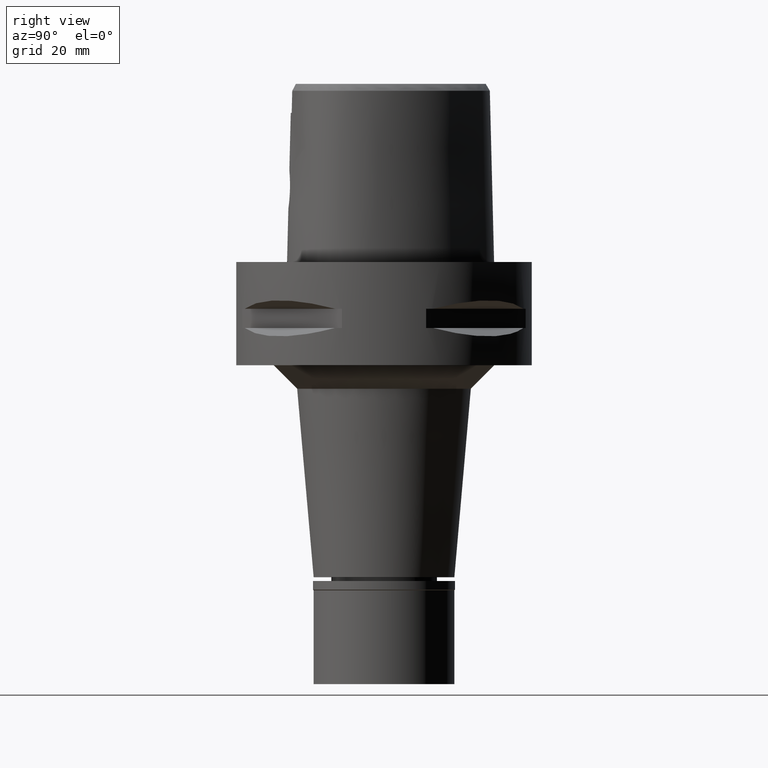
[diagram: clean part render]
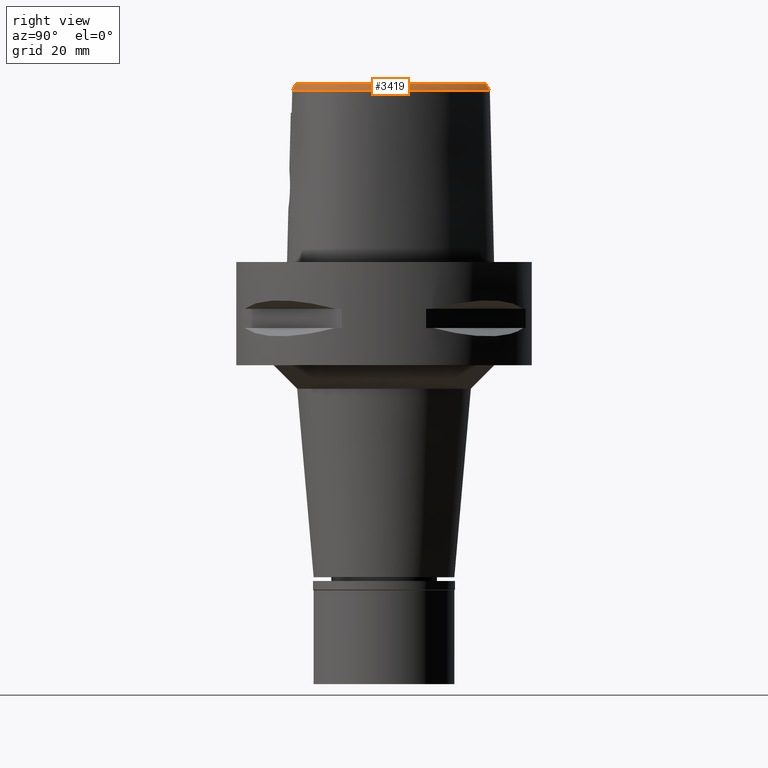
[diagram: same view with one face highlighted and labeled with its STEP entity id]
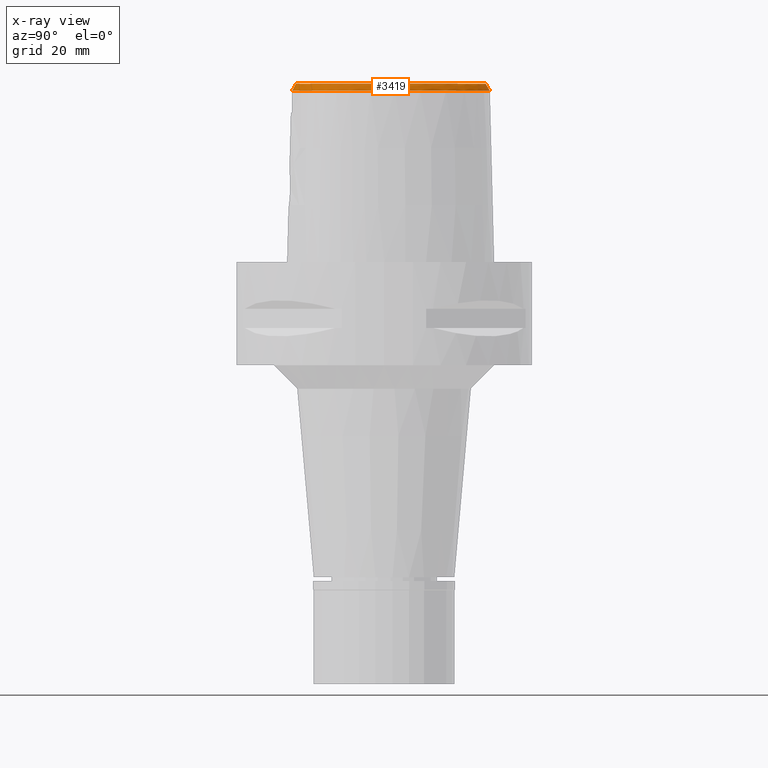
[diagram: x-ray of the same camera — body ghosted, the highlighted face saturated]
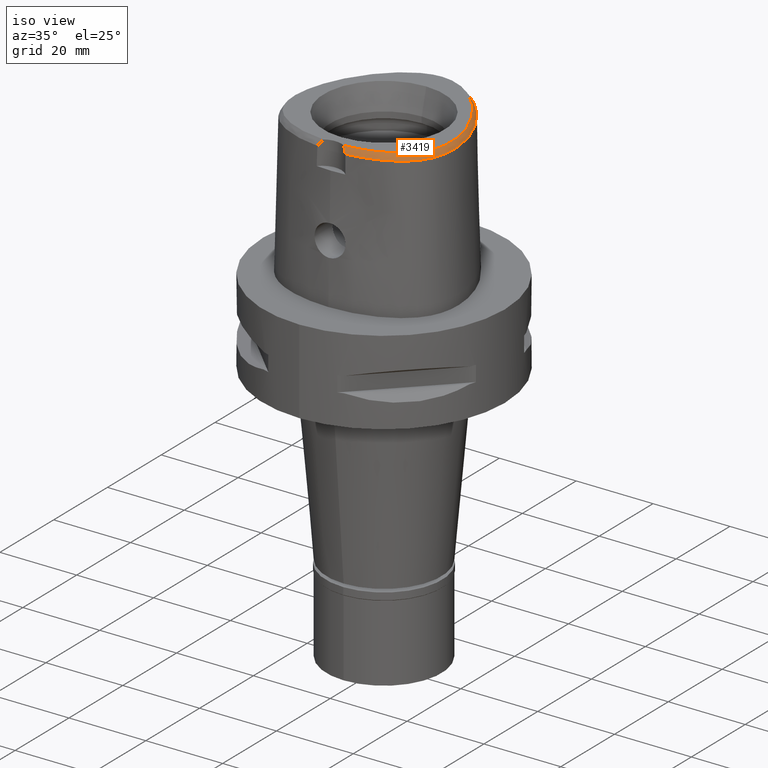
[diagram: same view with one face highlighted and labeled with its STEP entity id]
A machine part, right view. The second image highlights one B-rep face of the part: STEP entity #3419.
The next image is the same camera in x-ray: the body ghosted, the highlighted face saturated — about 0% of this face is hidden behind the body in this view.
A second angle (iso view) of the same face is appended — the face is thin or edge-on in the first view.
In plain terms, the highlighted face is a freeform B-spline surface patch.
Its self-contained STEP definition (entity closure, byte-faithful):
#2 = CARTESIAN_POINT ( 'NONE',  ( 19.28677546796750519, -9.867757137505764220, 37.99999999999878497 ) ) ;
#13 = CARTESIAN_POINT ( 'NONE',  ( 18.82339958224999776, -11.93651922117000019, 36.96245430902000351 ) ) ;
#17 = CARTESIAN_POINT ( 'NONE',  ( 2.886753499449000060, 21.94109491502999987, 36.96245486605999986 ) ) ;
#22 = CARTESIAN_POINT ( 'NONE',  ( 12.37622418509491240, -16.33871033285994301, 37.99999999999430145 ) ) ;
#35 = CARTESIAN_POINT ( 'NONE',  ( 19.54072541621000170, -10.75235681729999904, 36.96245430868000170 ) ) ;
#40 = CARTESIAN_POINT ( 'NONE',  ( 6.014400297148000618, 20.36356201911999975, 37.55937088886000197 ) ) ;
#45 = CARTESIAN_POINT ( 'NONE',  ( 16.36283630828100399, -13.76236604535038133, 38.00000000000225242 ) ) ;
#60 = CARTESIAN_POINT ( 'NONE',  ( 2.682287482605000051, -18.78036330228999873, 38.00000000000000000 ) ) ;
#67 = CARTESIAN_POINT ( 'NONE',  ( 14.53550040126000020, -15.86619582148000163, 36.96245481018000589 ) ) ;
#71 = CARTESIAN_POINT ( 'NONE',  ( 12.89885865524999886, 15.30092656807000040, 36.96245504852999630 ) ) ;
#75 = CARTESIAN_POINT ( 'NONE',  ( 0.6513209347954632689, 21.67370899611451307, 38.00000000000035527 ) ) ;
#89 = CARTESIAN_POINT ( 'NONE',  ( 16.09928105922000086, -14.78004617678000088, 36.96245458215999946 ) ) ;
#95 = CARTESIAN_POINT ( 'NONE',  ( 6.892756059283999370, 19.87879261946000042, 37.55937071850999587 ) ) ;
#100 = CARTESIAN_POINT ( 'NONE',  ( 4.255661039972075343, 20.86618068829521278, 37.99999999999997158 ) ) ;
#112 = CARTESIAN_POINT ( 'NONE',  ( 19.89653758994999677, 1.586947266660000189, 37.55937186637000025 ) ) ;
#138 = CARTESIAN_POINT ( 'NONE',  ( 16.32147458552999808, 10.04338311887000046, 37.55937072252999798 ) ) ;
#166 = CARTESIAN_POINT ( 'NONE',  ( 20.18694437705999789, 3.156796985435000202, 36.36554034574000127 ) ) ;
#171 = CARTESIAN_POINT ( 'NONE',  ( 19.88562079789232229, 4.345879946636718394, 36.52186680739950475 ) ) ;
#190 = CARTESIAN_POINT ( 'NONE',  ( 20.53822290665999972, -6.211376172036000121, 37.55937084174999541 ) ) ;
#195 = CARTESIAN_POINT ( 'NONE',  ( 21.32871516740222972, -4.105831245034531563, 36.52186680739950475 ) ) ;
#216 = CARTESIAN_POINT ( 'NONE',  ( 19.17435568167000071, 2.842826208067000593, 38.15628674202999804 ) ) ;
#242 = VERTEX_POINT ( 'NONE', #631 ) ;
#244 = CARTESIAN_POINT ( 'NONE',  ( 15.46386185985999973, 11.40201967039000053, 37.55937098772999860 ) ) ;
#274 = CARTESIAN_POINT ( 'NONE',  ( 6.245879172929000411, -18.57287515269000266, 37.55937067298000187 ) ) ;
#324 = CARTESIAN_POINT ( 'NONE',  ( 9.011200507435001228, -17.89803090756000259, 37.55937184490999670 ) ) ;
#344 = CARTESIAN_POINT ( 'NONE',  ( 2.341549290582000342, -19.77604595928000109, 36.36553922049999699 ) ) ;
#369 = CARTESIAN_POINT ( 'NONE',  ( 13.63149529901000001, -16.38927011956999991, 36.96245445247999584 ) ) ;
#372 = CARTESIAN_POINT ( 'NONE',  ( 6.176845213174000371, 20.67744099383000034, 36.96245489817000163 ) ) ;
#379 = CARTESIAN_POINT ( 'NONE',  ( 20.38292172607833663, -3.276278498261077754, 37.99999999999661071 ) ) ;
#396 = CARTESIAN_POINT ( 'NONE',  ( 16.31703459141000323, -15.05843567765000124, 36.36553840966000450 ) ) ;
#400 = CARTESIAN_POINT ( 'NONE',  ( 11.65145481511999925, 16.11049830197000077, 37.55937174491999286 ) ) ;
#419 = CARTESIAN_POINT ( 'NONE',  ( 17.83905042339999625, -12.07836463223999957, 38.15628688221000431 ) ) ;
#425 = CARTESIAN_POINT ( 'NONE',  ( 0.6455096655959999818, 21.58134423983000261, 38.15628696358000838 ) ) ;
#429 = CARTESIAN_POINT ( 'NONE',  ( 20.36412151361016143, -5.276385427453825550, 38.00000000000287059 ) ) ;
#441 = CARTESIAN_POINT ( 'NONE',  ( 17.12220962177000061, -13.40909359692000002, 37.55937069302000708 ) ) ;
#445 = CARTESIAN_POINT ( 'NONE',  ( 2.066573900365999972, 21.75897985881000096, 37.55937071363999280 ) ) ;
#450 = CARTESIAN_POINT ( 'NONE',  ( 5.059249257020264068, 20.53399274678865893, 37.99999999999805311 ) ) ;
#468 = CARTESIAN_POINT ( 'NONE',  ( 17.61980916983000256, -13.91119379205000151, 36.36553818101999980 ) ) ;
#471 = CARTESIAN_POINT ( 'NONE',  ( 2.197311056702000442, 22.45370508348000271, 36.36553825752000080 ) ) ;
#478 = CARTESIAN_POINT ( 'NONE',  ( 11.46587147800221729, 15.92717600802904343, 37.99999999999661071 ) ) ;
#489 = CARTESIAN_POINT ( 'NONE',  ( 21.10362509188000146, -7.194313379172999845, 36.36553808742000626 ) ) ;
#510 = CARTESIAN_POINT ( 'NONE',  ( 20.97715651562000261, -5.316049660497999874, 36.96245512615999473 ) ) ;
#520 = CARTESIAN_POINT ( 'NONE',  ( -1.574545528900000111E-11, 22.56201468012000078, 36.52186680743999858 ) ) ;
#533 = CARTESIAN_POINT ( 'NONE',  ( 20.41775792908000042, -0.9686541265957000491, 37.55937085664999842 ) ) ;
#535 = ORIENTED_EDGE ( 'NONE', *, *, #3888, .T. ) ;
#543 = CARTESIAN_POINT ( 'NONE',  ( 17.90324024157894556, -13.53935104436586734, 36.52186680739950475 ) ) ;
#562 = CARTESIAN_POINT ( 'NONE',  ( 19.70514471517000032, 4.588878222478999902, 36.36553765559999363 ) ) ;
#568 = CARTESIAN_POINT ( 'NONE',  ( 19.55745538001410466, -11.29150212658093899, 36.52186680739950475 ) ) ;
#573 = CARTESIAN_POINT ( 'NONE',  ( 4.715576077242163322, -18.56597918135059189, 37.99999999999705125 ) ) ;
#585 = CARTESIAN_POINT ( 'NONE',  ( 20.23826537439000006, -7.869272238534000152, 37.55937068247000354 ) ) ;
#593 = CARTESIAN_POINT ( 'NONE',  ( 20.09619608769164856, -10.23243839429906288, 36.52186680739950475 ) ) ;
#612 = CARTESIAN_POINT ( 'NONE',  ( 14.15555806865000044, 14.37256975606999987, 36.36553775957000312 ) ) ;
#631 = CARTESIAN_POINT ( 'NONE',  ( 3.637738219117000238, -19.56971420299000286, 36.52185956443999970 ) ) ;
#668 = FACE_OUTER_BOUND ( 'NONE', #2995, .T. ) ;
#726 = CARTESIAN_POINT ( 'NONE',  ( -0.6387872343346999715, 22.28377885336999853, 36.96245417096000097 ) ) ;
#733 = CARTESIAN_POINT ( 'NONE',  ( 19.46325231886000040, -9.193788734631999304, 38.15628689665999929 ) ) ;
#737 = CARTESIAN_POINT ( 'NONE',  ( 10.66622615412999941, 17.05831004507999893, 37.55937179816999816 ) ) ;
#743 = CARTESIAN_POINT ( 'NONE',  ( 20.15127154947607480, -7.022178451341247296, 38.00000000000580513 ) ) ;
#758 = CARTESIAN_POINT ( 'NONE',  ( 12.33656513880999839, -16.25510989612000046, 38.15628695778000434 ) ) ;
#762 = CARTESIAN_POINT ( 'NONE',  ( 6.339290129199000923, 20.99131996855000182, 36.36553890748000128 ) ) ;
#765 = CARTESIAN_POINT ( 'NONE',  ( 7.108589361577442922, 20.52412316394332947, 36.52186680739950475 ) ) ;
#770 = CARTESIAN_POINT ( 'NONE',  ( 2.736932690726676221, 21.34527940056596762, 38.00000000000354561 ) ) ;
#788 = CARTESIAN_POINT ( 'NONE',  ( 18.11634463444000076, -12.29755493228999974, 37.55937088139999958 ) ) ;
#795 = CARTESIAN_POINT ( 'NONE',  ( 2.131942478533999985, 22.10634247113999962, 36.96245448557999680 ) ) ;
#814 = CARTESIAN_POINT ( 'NONE',  ( 13.79982565747999956, -16.70002146805000010, 36.36553820537999826 ) ) ;
#818 = CARTESIAN_POINT ( 'NONE',  ( 7.800345489153000855, 19.31131083764999801, 37.55937072845999580 ) ) ;
#822 = CARTESIAN_POINT ( 'NONE',  ( 0.2185816947240815933, 21.68728795389642983, 37.99999999999877076 ) ) ;
#833 = CARTESIAN_POINT ( 'NONE',  ( 2.682287482605000051, -18.78036330228999873, 38.00000000000000000 ) ) ;
#838 = CARTESIAN_POINT ( 'NONE',  ( 14.35043383326000033, -15.56510265206000021, 37.55937085149999888 ) ) ;
#843 = CARTESIAN_POINT ( 'NONE',  ( 8.523644343047999783, 18.37184071138999997, 38.15628699081999997 ) ) ;
#849 = CARTESIAN_POINT ( 'NONE',  ( 20.15982952132423733, -1.007721426051640723, 38.00000000000341771 ) ) ;
#865 = CARTESIAN_POINT ( 'NONE',  ( 20.62446785186000042, -5.293230204340000356, 37.55937098568999488 ) ) ;
#887 = CARTESIAN_POINT ( 'NONE',  ( 17.83920735364000265, 7.212122914338999990, 37.55937099548999925 ) ) ;
#910 = CARTESIAN_POINT ( 'NONE',  ( 21.32984517938999858, -5.338869116656000280, 36.36553926662999459 ) ) ;
#940 = CARTESIAN_POINT ( 'NONE',  ( 17.11590239151000148, 8.641949414414000330, 37.55937082143999817 ) ) ;
#953 = DIRECTION ( 'NONE',  ( -1.103957904740014787E-11, -0.5092834681090075977, 0.8605988316927122295 ) ) ;
#956 = B_SPLINE_CURVE_WITH_KNOTS ( 'NONE', 3,
 ( #2313, #822, #75, #2283, #3562, #770, #3924, #100, #450, #3953, #1127, #2340, #1149, #1983, #1580, #478, #2776, #4299, #2010, #3900, #2725, #3876, #3183, #1225, #1203, #3844, #4275, #4675, #849, #2673, #379, #1606, #429, #1630, #743, #1907, #3460, #3134, #2, #2751, #3159, #1956, #1529, #3507, #3081, #45, #2694, #4242, #1932, #3485, #22, #1552, #3100, #3976, #3235, #4724, #573, #2114, #4081, #2139 ),
 .UNSPECIFIED., .F., .F.,
 ( 4, 1, 1, 1, 1, 1, 1, 1, 1, 1, 1, 1, 1, 1, 1, 1, 1, 1, 1, 1, 1, 1, 1, 1, 1, 1, 1, 1, 1, 1, 1, 1, 1, 1, 1, 1, 1, 1, 1, 1, 1, 1, 1, 1, 1, 1, 1, 1, 1, 1, 1, 1, 1, 1, 1, 1, 1, 4 ),
 ( 0.0000000000000000000, 0.01775854187129999318, 0.03551708374169992855, 0.05327562561200005486, 0.07103416748239999023, 0.08879270935270000553, 0.1065512512231000519, 0.1243097930933999562, 0.1420683349638000026, 0.1598268768341000179, 0.1775854187044000332, 0.1953439605747999686, 0.2131025024450999839, 0.2308610443155000302, 0.2486195861857999345, 0.2663781280563000120, 0.2841366699266000273, 0.3018952117970000737, 0.3196537536672999780, 0.3374122955377000244, 0.3551708374080000397, 0.3729293792782999439, 0.3906879211486999903, 0.4084464630190000056, 0.4262050048894000520, 0.4439635467596999563, 0.4617220886301000027, 0.4794806305004000180, 0.4972391723707999533, 0.5149977142410999686, 0.5327562561113999839, 0.5505147979818000303, 0.5682733398521000456, 0.5860318817224999810, 0.6037904235927999963, 0.6215489654632000427, 0.6393075073334999470, 0.6570660492038999934, 0.6748245910742000087, 0.6925831329445000240, 0.7103416748149000703, 0.7281002166851999746, 0.7458587585556000210, 0.7636173004259000363, 0.7813758422962999717, 0.7991343841665999870, 0.8168929260370000334, 0.8346514679073000487, 0.8524100097776999840, 0.8701685516479999993, 0.8879270935183000146, 0.9056856353886799660, 0.9234441772589799813, 0.9412027191293600437, 0.9589612609997000270, 0.9767198028700500023, 0.9944783447403919840, 1.000000000000000000 ),
 .UNSPECIFIED. ) ;
#967 = CARTESIAN_POINT ( 'NONE',  ( 20.19709617575000138, 0.2783253898219000266, 37.55937166388000037 ) ) ;
#974 = CARTESIAN_POINT ( 'NONE',  ( 7.300578979383786304, -19.07170738131021182, 36.52186680739950475 ) ) ;
#990 = CARTESIAN_POINT ( 'NONE',  ( 14.83867897260000035, 12.91174643505999775, 36.96245495123999802 ) ) ;
#1027 = CARTESIAN_POINT ( 'NONE',  ( 4.752559968461000039, -18.82419855254999774, 37.55937072340999805 ) ) ;
#1049 = CARTESIAN_POINT ( 'NONE',  ( 9.212455931803999576, -18.57554862813000085, 36.36554245381999806 ) ) ;
#1070 = CARTESIAN_POINT ( 'NONE',  ( 8.910572795250999434, -17.55927204728000035, 38.15628654046000179 ) ) ;
#1092 = CARTESIAN_POINT ( 'NONE',  ( 10.49942333324000110, -18.15680324255000144, 36.36554084926000030 ) ) ;
#1121 = CARTESIAN_POINT ( 'NONE',  ( 5.851955381121999977, 20.04968304439999827, 38.15628687955000231 ) ) ;
#1127 = CARTESIAN_POINT ( 'NONE',  ( 6.760281394350366568, 19.65404668909572550, 37.99999999999855049 ) ) ;
#1139 = CARTESIAN_POINT ( 'NONE',  ( 16.87340984773999963, -13.15804349935000062, 38.15628694902000717 ) ) ;
#1145 = CARTESIAN_POINT ( 'NONE',  ( 7.251680351220000098, 20.48771489122999867, 36.36553827558999785 ) ) ;
#1146 = CARTESIAN_POINT ( 'NONE',  ( 2.376843874103945264, 22.39422497744826757, 36.52186680739950475 ) ) ;
#1149 = CARTESIAN_POINT ( 'NONE',  ( 8.578848111815970512, 18.44609846599293590, 37.99999999999474198 ) ) ;
#1166 = CARTESIAN_POINT ( 'NONE',  ( 14.16536726526000223, -15.26400948263999879, 38.15628689281000163 ) ) ;
#1170 = CARTESIAN_POINT ( 'NONE',  ( 4.600319968398999926, 21.77050628761000084, 36.36553824410999880 ) ) ;
#1193 = CARTESIAN_POINT ( 'NONE',  ( 20.17073866317999986, -10.26189740072999967, 36.36553846151999636 ) ) ;
#1199 = CARTESIAN_POINT ( 'NONE',  ( 11.40004686514000021, 15.86215336529000020, 38.15628657591999939 ) ) ;
#1203 = CARTESIAN_POINT ( 'NONE',  ( 18.79595068776354694, 4.257753965101580995, 38.00000000000616041 ) ) ;
#1217 = CARTESIAN_POINT ( 'NONE',  ( 13.46316494054000046, -16.07851877108999972, 37.55937069959000496 ) ) ;
#1220 = CARTESIAN_POINT ( 'NONE',  ( 8.191533180200000430, 19.90000789804000192, 36.36553831246999380 ) ) ;
#1225 = CARTESIAN_POINT ( 'NONE',  ( 18.24247239569682932, 5.672548708071873058, 37.99999999999768363 ) ) ;
#1228 = VERTEX_POINT ( 'NONE', #4660 ) ;
#1237 = CARTESIAN_POINT ( 'NONE',  ( 19.13473091314000030, 6.046895918244000079, 36.36553860425999574 ) ) ;
#1266 = CARTESIAN_POINT ( 'NONE',  ( 20.06020767278999983, -7.005718940094999958, 38.15628695798000791 ) ) ;
#1290 = CARTESIAN_POINT ( 'NONE',  ( 21.36830379940000313, -4.318256241610000323, 36.36553843738000324 ) ) ;
#1314 = CARTESIAN_POINT ( 'NONE',  ( 17.52021813542000217, 7.060073460414999502, 38.15628684173999829 ) ) ;
#1343 = CARTESIAN_POINT ( 'NONE',  ( 20.88906702618000111, -6.254083717379000262, 36.96245478723000133 ) ) ;
#1350 = CARTESIAN_POINT ( 'NONE',  ( 3.637738219117000238, -19.56971420299000286, 36.52185956443999970 ) ) ;
#1369 = CARTESIAN_POINT ( 'NONE',  ( 15.75816041715999738, 11.59762451029999930, 36.96245513095999513 ) ) ;
#1397 = CARTESIAN_POINT ( 'NONE',  ( 3.519566799373999633, -18.61548205148000079, 38.15628685565000211 ) ) ;
#1426 = CARTESIAN_POINT ( 'NONE',  ( 7.668652018953999949, -18.26170612007999594, 37.55937152133000012 ) ) ;
#1467 = CARTESIAN_POINT ( 'NONE',  ( 2.293787586399000045, -19.07116538337000122, 37.55937097325000451 ) ) ;
#1479 = VERTEX_POINT ( 'NONE', #833 ) ;
#1519 = CARTESIAN_POINT ( 'NONE',  ( 15.15507663025999996, -15.03816364268999806, 37.55937097784999423 ) ) ;
#1524 = CARTESIAN_POINT ( 'NONE',  ( 1.401470888828000083, 22.22042332042000012, 36.96245412163000310 ) ) ;
#1529 = CARTESIAN_POINT ( 'NONE',  ( 17.91165267838871955, -12.13575389397633408, 38.00000000000260769 ) ) ;
#1541 = CARTESIAN_POINT ( 'NONE',  ( 19.50497263797999636, -11.53535008177999899, 36.36553847158999986 ) ) ;
#1546 = CARTESIAN_POINT ( 'NONE',  ( 5.310555168272000692, 21.09456536100000079, 36.96245481051000326 ) ) ;
#1552 = CARTESIAN_POINT ( 'NONE',  ( 11.32341394162465775, -16.80569392800635597, 37.99999999999545963 ) ) ;
#1561 = CARTESIAN_POINT ( 'NONE',  ( 3.014131115842000330, -19.00370910138000013, 37.57732746103999943 ) ) ;
#1568 = CARTESIAN_POINT ( 'NONE',  ( 11.69176346761000040, -17.70051758888999771, 36.36553800855000418 ) ) ;
#1573 = CARTESIAN_POINT ( 'NONE',  ( 0.6677049997401000025, 21.93411857480999672, 37.55937065197999658 ) ) ;
#1580 = CARTESIAN_POINT ( 'NONE',  ( 10.48999540690780030, 16.86597469869610677, 38.00000000000218847 ) ) ;
#1597 = ORIENTED_EDGE ( 'NONE', *, *, #3954, .T. ) ;
#1598 = CARTESIAN_POINT ( 'NONE',  ( 15.66377399485000055, -14.22326717504000015, 38.15628692716000359 ) ) ;
#1602 = CARTESIAN_POINT ( 'NONE',  ( 1.445454176703000027, 22.57114105287000072, 36.36553768419000221 ) ) ;
#1606 = CARTESIAN_POINT ( 'NONE',  ( 20.40062138794577251, -4.309334958867371057, 37.99999999999972289 ) ) ;
#1622 = CARTESIAN_POINT ( 'NONE',  ( 16.30168983983000075, -13.69290548126000040, 38.15628695883000887 ) ) ;
#1626 = CARTESIAN_POINT ( 'NONE',  ( 6.713293913315000694, 19.57433148357999997, 38.15628693997999932 ) ) ;
#1630 = CARTESIAN_POINT ( 'NONE',  ( 20.27923816685457581, -6.179850483268028327, 38.00000000000741807 ) ) ;
#1637 = ORIENTED_EDGE ( 'NONE', *, *, #1984, .F. ) ;
#1643 = CARTESIAN_POINT ( 'NONE',  ( 19.37310104886000062, 4.467949455780999557, 36.96245410349000338 ) ) ;
#1674 = CARTESIAN_POINT ( 'NONE',  ( 21.26780737438999935, -2.080483983398000447, 36.36553782952000091 ) ) ;
#1700 = CARTESIAN_POINT ( 'NONE',  ( 20.21269943633000210, -2.184418552784999967, 38.15628698263000018 ) ) ;
#1723 = CARTESIAN_POINT ( 'NONE',  ( 21.34964201134000206, -3.232676156365000164, 36.36553823695999910 ) ) ;
#1731 = CARTESIAN_POINT ( 'NONE',  ( 17.27359236349375493, 9.972912859139423603, 36.52186680739950475 ) ) ;
#1750 = CARTESIAN_POINT ( 'NONE',  ( 20.56440208234999645, -2.149773696322999861, 37.55937059825999569 ) ) ;
#1774 = CARTESIAN_POINT ( 'NONE',  ( 13.60683221414000066, 13.92714394980999870, 37.55937057941000035 ) ) ;
#1802 = CARTESIAN_POINT ( 'NONE',  ( 7.584915089941000055, -17.91838663277999899, 38.15628665522999796 ) ) ;
#1829 = CARTESIAN_POINT ( 'NONE',  ( 3.631223109711999797, -19.66949671803000044, 36.36553915751999710 ) ) ;
#1872 = CARTESIAN_POINT ( 'NONE',  ( 2.635831967481000238, -18.69279753715999703, 38.15628684472000032 ) ) ;
#1883 = ORIENTED_EDGE ( 'NONE', *, *, #3103, .F. ) ;
#1885 = CARTESIAN_POINT ( 'NONE',  ( -0.6586843888604999586, 22.63643931054999570, 36.36553776190000065 ) ) ;
#1895 = CARTESIAN_POINT ( 'NONE',  ( 20.45642687396999904, -9.565302226959000009, 36.36553872865999892 ) ) ;
#1902 = CARTESIAN_POINT ( 'NONE',  ( 4.222704814411000207, 20.77970923499999856, 38.15628694299000045 ) ) ;
#1907 = CARTESIAN_POINT ( 'NONE',  ( 19.98468477323028480, -7.807876343103568928, 37.99999999999607070 ) ) ;
#1923 = CARTESIAN_POINT ( 'NONE',  ( 18.39363884547999817, -12.51674523234999903, 36.96245488059999929 ) ) ;
#1928 = CARTESIAN_POINT ( 'NONE',  ( 3.560723033697999806, 21.38353220142999689, 37.55937084002000148 ) ) ;
#1932 = CARTESIAN_POINT ( 'NONE',  ( 14.21382211799360284, -15.34284287400294744, 37.99999999999831601 ) ) ;
#1945 = CARTESIAN_POINT ( 'NONE',  ( 18.24283645499000173, -11.53315282852000045, 38.15628696830000166 ) ) ;
#1950 = CARTESIAN_POINT ( 'NONE',  ( 10.90496424113000096, 17.31886487663999930, 36.96245703930999582 ) ) ;
#1956 = CARTESIAN_POINT ( 'NONE',  ( 18.31883910943470184, -11.58595831187757597, 37.99999999999683098 ) ) ;
#1973 = CARTESIAN_POINT ( 'NONE',  ( 14.95351292485000094, -14.74784682249000056, 38.15628684799000325 ) ) ;
#1978 = CARTESIAN_POINT ( 'NONE',  ( 3.454332491158999652, 21.04647844819000113, 38.15628689687999753 ) ) ;
#1980 = CARTESIAN_POINT ( 'NONE',  ( -1.574545528900000111E-11, 22.56201468012000078, 36.52186680743999858 ) ) ;
#1983 = CARTESIAN_POINT ( 'NONE',  ( 9.524842839487684287, 17.70516372194975929, 38.00000000000385825 ) ) ;
#1984 = EDGE_CURVE ( 'NONE', #242, #1479, #2027, .T. ) ;
#2001 = CARTESIAN_POINT ( 'NONE',  ( 19.20267523076999794, -11.35215198447000162, 36.96245462147000183 ) ) ;
#2006 = CARTESIAN_POINT ( 'NONE',  ( 7.072218205252000622, 20.18325375535000177, 36.96245449704999686 ) ) ;
#2010 = CARTESIAN_POINT ( 'NONE',  ( 14.34383722811263695, 12.54786717290314257, 37.99999999999553779 ) ) ;
#2023 = CARTESIAN_POINT ( 'NONE',  ( 20.66149577815000171, -4.311740018799999241, 37.55937076213000125 ) ) ;
#2027 = B_SPLINE_CURVE_WITH_KNOTS ( 'NONE', 3,
 ( #3982, #3217, #2811, #1561, #2838, #60 ),
 .UNSPECIFIED., .F., .F.,
 ( 4, 1, 1, 4 ),
 ( 0.0000000000000000000, 0.3333333333333000081, 0.6666666666667000474, 1.000000000000000000 ),
 .UNSPECIFIED. ) ;
#2038 = B_SPLINE_SURFACE_WITH_KNOTS ( 'NONE', 3, 3, ( 
 ( #2620, #4128, #2255, #2575 ),
 ( #4900, #1467, #3019, #344 ),
 ( #1872, #4878, #3717, #3354 ),
 ( #1397, #2952, #4492, #1829 ),
 ( #4929, #1027, #4971, #3743 ),
 ( #4542, #274, #3050, #2599 ),
 ( #1802, #1426, #2980, #2235 ),
 ( #1070, #324, #3404, #1049 ),
 ( #4949, #2208, #4566, #1092 ),
 ( #3765, #4232, #2665, #1568 ),
 ( #758, #3473, #3914, #2301 ),
 ( #3868, #1217, #369, #814 ),
 ( #1166, #838, #67, #2712 ),
 ( #1973, #1519, #4690, #2766 ),
 ( #1598, #3835, #89, #396 ),
 ( #1622, #2353, #3942, #4210 ),
 ( #1139, #441, #3121, #468 ),
 ( #3526, #3174, #2333, #4265 ),
 ( #419, #788, #1923, #4715 ),
 ( #1945, #3891, #13, #3150 ),
 ( #3069, #4312, #2001, #1541 ),
 ( #3554, #3497, #35, #4612 ),
 ( #2383, #4665, #4996, #1193 ),
 ( #733, #2276, #3092, #1895 ),
 ( #3453, #2683, #2743, #4636 ),
 ( #4291, #585, #3197, #2869 ),
 ( #1266, #4440, #4741, #489 ),
 ( #3655, #190, #1343, #2460 ),
 ( #2415, #865, #510, #910 ),
 ( #3968, #2023, #4016, #1290 ),
 ( #3273, #4821, #4072, #1723 ),
 ( #1700, #1750, #2817, #1674 ),
 ( #3302, #533, #3599, #2049 ),
 ( #4338, #967, #4769, #2898 ),
 ( #2845, #112, #2077, #4389 ),
 ( #216, #3249, #3631, #166 ),
 ( #2512, #2127, #1643, #562 ),
 ( #4364, #4794, #3680, #1237 ),
 ( #1314, #887, #4415, #2789 ),
 ( #3577, #940, #2438, #4050 ),
 ( #3989, #138, #3225, #2491 ),
 ( #2105, #244, #1369, #2920 ),
 ( #4849, #4461, #990, #2536 ),
 ( #3708, #1774, #4095, #612 ),
 ( #2154, #4317, #71, #3129 ),
 ( #1199, #400, #2747, #4615 ),
 ( #4237, #737, #1950, #3502 ),
 ( #2771, #3096, #2336, #3456 ),
 ( #843, #3715, #2279, #3839 ),
 ( #2687, #818, #4596, #1220 ),
 ( #1626, #95, #2006, #1145 ),
 ( #1121, #40, #372, #762 ),
 ( #2358, #2308, #1546, #3871 ),
 ( #1902, #2668, #3919, #1170 ),
 ( #1978, #1928, #3949, #4214 ),
 ( #3480, #4270, #17, #4640 ),
 ( #4669, #445, #795, #471 ),
 ( #2720, #3896, #1524, #1602 ),
 ( #425, #1573, #4295, #2388 ),
 ( #3534, #3558, #3076, #3155 ),
 ( #4693, #3035, #2515, #4987 ),
 ( #2538, #4202, #726, #1885 ) ),
 .UNSPECIFIED., .F., .F., .F.,
 ( 4, 1, 1, 1, 1, 1, 1, 1, 1, 1, 1, 1, 1, 1, 1, 1, 1, 1, 1, 1, 1, 1, 1, 1, 1, 1, 1, 1, 1, 1, 1, 1, 1, 1, 1, 1, 1, 1, 1, 1, 1, 1, 1, 1, 1, 1, 1, 1, 1, 1, 1, 1, 1, 1, 1, 1, 1, 1, 1, 4 ),
 ( 4, 4 ),
 ( -0.006872922983041999424, 0.0000000000000000000, 0.005521655259608000341, 0.02328019712995000115, 0.04103873900030000077, 0.05879728087063999797, 0.07655582274102000484, 0.09431436461132000626, 0.1120729064816999992, 0.1298314483520000007, 0.1475899902222999882, 0.1653485320926999791, 0.1831070739629999944, 0.2008656158334000130, 0.2186241577037000006, 0.2363826995740999914, 0.2541412414444000345, 0.2718997833148000254, 0.2896583251850999852, 0.3074168670554999760, 0.3251754089257999913, 0.3429339507961000066, 0.3606924926664999975, 0.3784510345368000128, 0.3962095764072000037, 0.4139681182775000190, 0.4317266601479000099, 0.4494852020181999697, 0.4672437438886000161, 0.4850022857588999758, 0.5027608276292000467, 0.5205193694995999820, 0.5382779113698999973, 0.5560364532403000437, 0.5737949951105999480, 0.5915535369809999944, 0.6093120788513000097, 0.6270706207217000561, 0.6448291625919999603, 0.6625877044622999756, 0.6803462463327000220, 0.6981047882029999263, 0.7158633300733999727, 0.7336218719436999880, 0.7513804138142000655, 0.7691389556844999698, 0.7868974975549000161, 0.8046560394252000314, 0.8224145812955999668, 0.8401731231658999821, 0.8579316650361999974, 0.8756902069066000438, 0.8934487487768999481, 0.9112072906472999945, 0.9289658325176000098, 0.9467243743879999451, 0.9644829162583000715, 0.9822414581287000068, 1.000000000000000000, 1.016088127153999876 ),
 ( -0.08243469471465000864, 1.082456586660999864 ),
 .UNSPECIFIED. ) ;
#2049 = CARTESIAN_POINT ( 'NONE',  ( 21.11658416254000059, -0.8628059419469000790, 36.36553878796999584 ) ) ;
#2077 = CARTESIAN_POINT ( 'NONE',  ( 20.23881342526000182, 1.674865113389000015, 36.96245719989999401 ) ) ;
#2105 = CARTESIAN_POINT ( 'NONE',  ( 15.16956330254999941, 11.20641483047000087, 38.15628684449000474 ) ) ;
#2114 = CARTESIAN_POINT ( 'NONE',  ( 3.529311563348326075, -18.70747079909575916, 37.99999999999941735 ) ) ;
#2127 = CARTESIAN_POINT ( 'NONE',  ( 19.04105738254999736, 4.347020689082000011, 37.55937055137999891 ) ) ;
#2139 = CARTESIAN_POINT ( 'NONE',  ( 2.682287482605000051, -18.78036330228999873, 38.00000000000000000 ) ) ;
#2154 = CARTESIAN_POINT ( 'NONE',  ( 12.37232843103000057, 14.82946112533999994, 38.15628685691000044 ) ) ;
#2208 = CARTESIAN_POINT ( 'NONE',  ( 10.26429820406000104, -17.49027058102999987, 37.55937141233999910 ) ) ;
#2235 = CARTESIAN_POINT ( 'NONE',  ( 7.836125876981999916, -18.94834509467999695, 36.36554125352000000 ) ) ;
#2255 = CARTESIAN_POINT ( 'NONE',  ( 2.109838728328999657, -19.43641526061999869, 36.96245506337999842 ) ) ;
#2276 = CARTESIAN_POINT ( 'NONE',  ( 19.79431050388999935, -9.317626565408000161, 37.55937084066000153 ) ) ;
#2279 = CARTESIAN_POINT ( 'NONE',  ( 8.945330570543999826, 18.93907503432999917, 36.96245415950000535 ) ) ;
#2283 = CARTESIAN_POINT ( 'NONE',  ( 1.325020189552906569, 21.61081414408513979, 37.99999999999960210 ) ) ;
#2301 = CARTESIAN_POINT ( 'NONE',  ( 12.79098176615000071, -17.21301060396999816, 36.36553808936999843 ) ) ;
#2308 = CARTESIAN_POINT ( 'NONE',  ( 5.165974931020000049, 20.77205913280999638, 37.55937085163999711 ) ) ;
#2313 = CARTESIAN_POINT ( 'NONE',  ( -3.470663397168999981E-11, 21.68728795390000030, 38.00000000000000000 ) ) ;
#2333 = CARTESIAN_POINT ( 'NONE',  ( 17.91093962431000008, -13.09119824579999936, 36.96245453094000055 ) ) ;
#2336 = CARTESIAN_POINT ( 'NONE',  ( 9.916339213624000948, 18.17850517871000449, 36.96245546845999996 ) ) ;
#2340 = CARTESIAN_POINT ( 'NONE',  ( 7.655962789342824593, 19.09402979099765574, 38.00000000000531486 ) ) ;
#2353 = CARTESIAN_POINT ( 'NONE',  ( 16.53523026814999852, -13.95820044105000157, 37.55937066538000124 ) ) ;
#2358 = CARTESIAN_POINT ( 'NONE',  ( 5.021394693768000295, 20.44955290461999908, 38.15628689276000074 ) ) ;
#2383 = CARTESIAN_POINT ( 'NONE',  ( 19.20225106414000393, -9.830069515493997656, 38.15628692220000318 ) ) ;
#2388 = CARTESIAN_POINT ( 'NONE',  ( 0.7120956680282000129, 22.63966724477000270, 36.36553802878999875 ) ) ;
#2415 = CARTESIAN_POINT ( 'NONE',  ( 20.27177918810000179, -5.270410748183000038, 38.15628684522000214 ) ) ;
#2438 = CARTESIAN_POINT ( 'NONE',  ( 17.42734941164000162, 8.808903068935000746, 36.96245473941000625 ) ) ;
#2460 = CARTESIAN_POINT ( 'NONE',  ( 21.23991114570999983, -6.296791262722999605, 36.36553873270000281 ) ) ;
#2491 = CARTESIAN_POINT ( 'NONE',  ( 16.92788624682999554, 10.40636479989000129, 36.36553829047999642 ) ) ;
#2512 = CARTESIAN_POINT ( 'NONE',  ( 18.70901371624000120, 4.226091922384000554, 38.15628699927000156 ) ) ;
#2515 = CARTESIAN_POINT ( 'NONE',  ( -0.4210488145975999630, 22.29537873253000058, 36.96245448731999517 ) ) ;
#2536 = CARTESIAN_POINT ( 'NONE',  ( 15.12336919919999900, 13.12109188894999967, 36.36553899108000110 ) ) ;
#2538 = CARTESIAN_POINT ( 'NONE',  ( -0.5989929252830999973, 21.57845793901999798, 38.15628698908999894 ) ) ;
#2544 = CARTESIAN_POINT ( 'NONE',  ( 20.67704204633949416, -8.734985285293515034, 36.52186680739950475 ) ) ;
#2575 = CARTESIAN_POINT ( 'NONE',  ( 2.131566285756999690, -19.78898824387000133, 36.36553916772999884 ) ) ;
#2599 = CARTESIAN_POINT ( 'NONE',  ( 6.379677017913000014, -19.26685526950999972, 36.36553810666999453 ) ) ;
#2620 = CARTESIAN_POINT ( 'NONE',  ( 2.066383613474000125, -18.73126929412000052, 38.15628685467999759 ) ) ;
#2665 = CARTESIAN_POINT ( 'NONE',  ( 11.55723978685000120, -17.37372207537999813, 36.96245432754000149 ) ) ;
#2668 = CARTESIAN_POINT ( 'NONE',  ( 4.348576532406999817, 21.10997491920999991, 37.55937071002999517 ) ) ;
#2673 = CARTESIAN_POINT ( 'NONE',  ( 20.30478359881859163, -2.175347700950521990, 37.99999999999720757 ) ) ;
#2683 = CARTESIAN_POINT ( 'NONE',  ( 20.03270012596999905, -8.617582241457999004, 37.55937071033000052 ) ) ;
#2687 = CARTESIAN_POINT ( 'NONE',  ( 7.604751643630000224, 19.01696230746000182, 38.15628693646000613 ) ) ;
#2689 = B_SPLINE_CURVE_WITH_KNOTS ( 'NONE', 3,
 ( #1980, #3897, #1146, #4238, #765, #3481, #4832, #1731, #171, #4799, #195, #3232, #2544, #593, #568, #3206, #543, #4057, #3254, #3310, #974, #4370, #1350 ),
 .UNSPECIFIED., .F., .F.,
 ( 4, 1, 1, 1, 1, 1, 1, 1, 1, 1, 1, 1, 1, 1, 1, 1, 1, 1, 1, 1, 4 ),
 ( 0.0000000000000000000, 0.04382683003322340037, 0.08765366006602592908, 0.1314804900989337832, 0.1753073201318416652, 0.2629609801974468475, 0.3506146402631573622, 0.4382683003288677659, 0.5259219603945782806, 0.5697487904274860515, 0.6135756204602886843, 0.6574024504930913171, 0.6793158655094925225, 0.7012292805259991990, 0.7231426955424004044, 0.7450561105588017208, 0.7888829405917096027, 0.8327097706246173736, 0.8765366006573148683, 0.9641902607230883326, 1.000000000000000000 ),
 .UNSPECIFIED. ) ;
#2694 = CARTESIAN_POINT ( 'NONE',  ( 15.72078707640478612, -14.29615620309631119, 37.99999999999983658 ) ) ;
#2712 = CARTESIAN_POINT ( 'NONE',  ( 14.72056696926000185, -16.16728899091000216, 36.36553876886999603 ) ) ;
#2720 = CARTESIAN_POINT ( 'NONE',  ( 1.313504313077999974, 21.51898785551999893, 38.15628699652999956 ) ) ;
#2725 = CARTESIAN_POINT ( 'NONE',  ( 16.09765529146238450, 9.909410920132442513, 37.99999999999506173 ) ) ;
#2743 = CARTESIAN_POINT ( 'NONE',  ( 20.37065201975999784, -8.721115817823999805, 36.96245447777999260 ) ) ;
#2747 = CARTESIAN_POINT ( 'NONE',  ( 11.90286276510000008, 16.35884323866000045, 36.96245691392000055 ) ) ;
#2751 = CARTESIAN_POINT ( 'NONE',  ( 18.99619228226278267, -10.46780014453613639, 37.99999999999685940 ) ) ;
#2766 = CARTESIAN_POINT ( 'NONE',  ( 15.55820404107000066, -15.61879728308000104, 36.36553923755999307 ) ) ;
#2771 = CARTESIAN_POINT ( 'NONE',  ( 9.465871189421999787, 17.63386363184999794, 38.15628679366000142 ) ) ;
#2776 = CARTESIAN_POINT ( 'NONE',  ( 12.44125753246114741, 14.89118158853265506, 37.99999999999981526 ) ) ;
#2789 = CARTESIAN_POINT ( 'NONE',  ( 18.47718579009000095, 7.516221822188000168, 36.36553930297999671 ) ) ;
#2811 = CARTESIAN_POINT ( 'NONE',  ( 3.333868935029999925, -19.26581421714999820, 37.08574826756999698 ) ) ;
#2817 = CARTESIAN_POINT ( 'NONE',  ( 20.91610472836999790, -2.115128839861000198, 36.96245421388999830 ) ) ;
#2838 = CARTESIAN_POINT ( 'NONE',  ( 2.793625044164000037, -18.85113701318000423, 37.86577414380999329 ) ) ;
#2845 = CARTESIAN_POINT ( 'NONE',  ( 19.55426175464999972, 1.499029419931000140, 38.15628653283999938 ) ) ;
#2869 = CARTESIAN_POINT ( 'NONE',  ( 20.92531174486000367, -8.035617088746001002, 36.36553814187999478 ) ) ;
#2898 = CARTESIAN_POINT ( 'NONE',  ( 20.88960286478999961, 0.4196704684418000042, 36.36554178230999668 ) ) ;
#2920 = CARTESIAN_POINT ( 'NONE',  ( 16.05245897446999948, 11.79322935020999985, 36.36553927419999610 ) ) ;
#2952 = CARTESIAN_POINT ( 'NONE',  ( 3.556785569487000309, -18.96682027366999890, 37.55937095627000133 ) ) ;
#2980 = CARTESIAN_POINT ( 'NONE',  ( 7.752388947968000821, -18.60502560737999644, 36.96245638742000494 ) ) ;
#2995 = EDGE_LOOP ( 'NONE', ( #1883, #1597, #535, #1637 ) ) ;
#3019 = CARTESIAN_POINT ( 'NONE',  ( 2.317668438491000238, -19.42360567132999805, 36.96245509687999231 ) ) ;
#3035 = CARTESIAN_POINT ( 'NONE',  ( -0.4077068678209999630, 21.94232873877999879, 37.55937071437999464 ) ) ;
#3050 = CARTESIAN_POINT ( 'NONE',  ( 6.312778095420999769, -18.91986521109999941, 36.96245438983000042 ) ) ;
#3069 = CARTESIAN_POINT ( 'NONE',  ( 18.59808041636999576, -10.98575578984999979, 38.15628692124000310 ) ) ;
#3076 = CARTESIAN_POINT ( 'NONE',  ( 0.02372161385934999644, 22.30780340027000008, 36.96245470243999875 ) ) ;
#3081 = CARTESIAN_POINT ( 'NONE',  ( 16.93855157777293030, -13.22377441789424779, 37.99999999999754863 ) ) ;
#3092 = CARTESIAN_POINT ( 'NONE',  ( 20.12536868892999919, -9.441464396182999153, 36.96245478466000378 ) ) ;
#3096 = CARTESIAN_POINT ( 'NONE',  ( 9.691105201522999479, 17.90618440527999766, 37.55937113106000425 ) ) ;
#3100 = CARTESIAN_POINT ( 'NONE',  ( 10.17751632998452394, -17.24426134458238025, 37.99999999999447908 ) ) ;
#3103 = EDGE_CURVE ( 'NONE', #1228, #242, #2689, .T. ) ;
#3121 = CARTESIAN_POINT ( 'NONE',  ( 17.37100939580000158, -13.66014369447999854, 36.96245443701999278 ) ) ;
#3129 = CARTESIAN_POINT ( 'NONE',  ( 13.16212376735999889, 15.53665928944000107, 36.36553914433999068 ) ) ;
#3134 = CARTESIAN_POINT ( 'NONE',  ( 19.54993126782026636, -9.226212439885431493, 38.00000000000233058 ) ) ;
#3150 = CARTESIAN_POINT ( 'NONE',  ( 19.11368114587000022, -12.13820241748999962, 36.36553797938000088 ) ) ;
#3155 = CARTESIAN_POINT ( 'NONE',  ( 0.02438739736268999772, 22.66125700467000215, 36.36553859914000242 ) ) ;
#3159 = CARTESIAN_POINT ( 'NONE',  ( 18.67722910597895947, -11.03372143227890412, 38.00000000000209610 ) ) ;
#3174 = CARTESIAN_POINT ( 'NONE',  ( 17.64751588558999984, -12.85552863867999918, 37.55937073290999706 ) ) ;
#3183 = CARTESIAN_POINT ( 'NONE',  ( 17.60373714028152392, 7.099883643192670846, 37.99999999999968026 ) ) ;
#3197 = CARTESIAN_POINT ( 'NONE',  ( 20.58178855963000231, -7.952444663639999689, 36.96245441217999428 ) ) ;
#3206 = CARTESIAN_POINT ( 'NONE',  ( 18.90964962507504410, -12.28759713487154137, 36.52186680739950475 ) ) ;
#3217 = CARTESIAN_POINT ( 'NONE',  ( 3.538448067789999651, -19.46441930932000020, 36.71656608941999878 ) ) ;
#3225 = CARTESIAN_POINT ( 'NONE',  ( 16.62468041617999859, 10.22487395937999999, 36.96245450650000208 ) ) ;
#3232 = CARTESIAN_POINT ( 'NONE',  ( 21.14970177530845774, -6.717195943319587137, 36.52186680739950475 ) ) ;
#3235 = CARTESIAN_POINT ( 'NONE',  ( 7.606839420237617055, -18.00827588386125555, 37.99999999999993605 ) ) ;
#3249 = CARTESIAN_POINT ( 'NONE',  ( 19.51188524679999858, 2.947483133856000137, 37.55937127659999675 ) ) ;
#3254 = CARTESIAN_POINT ( 'NONE',  ( 14.22011350746694447, -16.41829354688284681, 36.52186680739950475 ) ) ;
#3273 = CARTESIAN_POINT ( 'NONE',  ( 20.29048410398999991, -3.280447746454000502, 38.15628694367000406 ) ) ;
#3302 = CARTESIAN_POINT ( 'NONE',  ( 20.06834481234999856, -1.021578218920000003, 38.15628689099000326 ) ) ;
#3310 = CARTESIAN_POINT ( 'NONE',  ( 10.91891095220992014, -18.03046396093127157, 36.52186680739950475 ) ) ;
#3354 = CARTESIAN_POINT ( 'NONE',  ( 2.719126562659999635, -19.74929320641000174, 36.36553927184999679 ) ) ;
#3374 = VECTOR ( 'NONE', #953, 1000.000000000000227 ) ;
#3404 = CARTESIAN_POINT ( 'NONE',  ( 9.111828219619999558, -18.23678976784000128, 36.96245714935999871 ) ) ;
#3419 = ADVANCED_FACE ( 'NONE', ( #668 ), #2038, .F. ) ;
#3453 = CARTESIAN_POINT ( 'NONE',  ( 19.69474823216999937, -8.514048665093001844, 38.15628694288000133 ) ) ;
#3456 = CARTESIAN_POINT ( 'NONE',  ( 10.14157322572999931, 18.45082595214999799, 36.36553980585999568 ) ) ;
#3460 = CARTESIAN_POINT ( 'NONE',  ( 19.78323211892517008, -8.541156231035181179, 37.99999999999732836 ) ) ;
#3473 = CARTESIAN_POINT ( 'NONE',  ( 12.48803734793000153, -16.57441013207000324, 37.55937066831000237 ) ) ;
#3480 = CARTESIAN_POINT ( 'NONE',  ( 2.714364971359999767, 21.25553087071000391, 38.15628688440000360 ) ) ;
#3481 = CARTESIAN_POINT ( 'NONE',  ( 10.15538781007171387, 18.47129526702921254, 36.52186680739950475 ) ) ;
#3485 = CARTESIAN_POINT ( 'NONE',  ( 13.33890749495969352, -15.84912955619302188, 37.99999999999756994 ) ) ;
#3497 = CARTESIAN_POINT ( 'NONE',  ( 19.22744695289999939, -10.58864689477999832, 37.55937063852000080 ) ) ;
#3502 = CARTESIAN_POINT ( 'NONE',  ( 11.14370232813000072, 17.57941970819999966, 36.36554228044000325 ) ) ;
#3507 = CARTESIAN_POINT ( 'NONE',  ( 17.45306278053304894, -12.68156296993306320, 38.00000000000389377 ) ) ;
#3526 = CARTESIAN_POINT ( 'NONE',  ( 17.38409214685999871, -12.61985903156000077, 38.15628693488000778 ) ) ;
#3534 = CARTESIAN_POINT ( 'NONE',  ( 0.02239004685266000189, 21.60089619145000128, 38.15628690903999853 ) ) ;
#3554 = CARTESIAN_POINT ( 'NONE',  ( 18.91416848959000063, -10.42493697225999938, 38.15628696835000255 ) ) ;
#3558 = CARTESIAN_POINT ( 'NONE',  ( 0.02305583035600000316, 21.95434979586000068, 37.55937080573999509 ) ) ;
#3562 = CARTESIAN_POINT ( 'NONE',  ( 2.018320379028125444, 21.50256508436395464, 38.00000000000050449 ) ) ;
#3577 = CARTESIAN_POINT ( 'NONE',  ( 16.80445537137999779, 8.474995759892999914, 38.15628690348000163 ) ) ;
#3599 = CARTESIAN_POINT ( 'NONE',  ( 20.76717104580999873, -0.9157300342712999530, 36.96245482231000068 ) ) ;
#3631 = CARTESIAN_POINT ( 'NONE',  ( 19.84941481193000001, 3.052140059646000214, 36.96245581117000256 ) ) ;
#3655 = CARTESIAN_POINT ( 'NONE',  ( 20.18737878713000100, -6.168668626692999979, 38.15628689628000103 ) ) ;
#3680 = CARTESIAN_POINT ( 'NONE',  ( 18.80887220697000117, 5.910181843588999229, 36.96245470568999991 ) ) ;
#3708 = CARTESIAN_POINT ( 'NONE',  ( 13.33246928688000033, 13.70443104667999989, 38.15628698932000873 ) ) ;
#3715 = CARTESIAN_POINT ( 'NONE',  ( 8.734487456795999805, 18.65545787286000134, 37.55937057516000266 ) ) ;
#3717 = CARTESIAN_POINT ( 'NONE',  ( 2.691361697600000102, -19.39712798332000077, 36.96245512947000122 ) ) ;
#3743 = CARTESIAN_POINT ( 'NONE',  ( 4.852763407175999966, -19.52381311671999953, 36.36553829375999669 ) ) ;
#3751 = CARTESIAN_POINT ( 'NONE',  ( -3.470663397168999981E-11, 21.68728795390000030, 38.00000000000000000 ) ) ;
#3765 = CARTESIAN_POINT ( 'NONE',  ( 11.28819242533000100, -16.72013104838000075, 38.15628696551000587 ) ) ;
#3824 = VERTEX_POINT ( 'NONE', #3751 ) ;
#3835 = CARTESIAN_POINT ( 'NONE',  ( 15.88152752704000115, -14.50165667591000052, 37.55937075465999442 ) ) ;
#3839 = CARTESIAN_POINT ( 'NONE',  ( 9.156173684292001624, 19.22269219580000055, 36.36553774383000359 ) ) ;
#3844 = CARTESIAN_POINT ( 'NONE',  ( 19.26272899268105121, 2.870227893749428993, 37.99999999999767653 ) ) ;
#3868 = CARTESIAN_POINT ( 'NONE',  ( 13.29483458206999913, -15.76776742260999775, 38.15628694669000254 ) ) ;
#3871 = CARTESIAN_POINT ( 'NONE',  ( 5.455135405523999559, 21.41707158918999809, 36.36553876938999963 ) ) ;
#3876 = CARTESIAN_POINT ( 'NONE',  ( 16.88599964843558965, 8.518708218769701190, 38.00000000000465405 ) ) ;
#3888 = EDGE_CURVE ( 'NONE', #3824, #1479, #956, .T. ) ;
#3891 = CARTESIAN_POINT ( 'NONE',  ( 18.53311801861999797, -11.73483602483999988, 37.55937063865999903 ) ) ;
#3896 = CARTESIAN_POINT ( 'NONE',  ( 1.357487600953000140, 21.86970558796999953, 37.55937055908000133 ) ) ;
#3897 = CARTESIAN_POINT ( 'NONE',  ( 0.7901461619524816626, 22.56201467849382780, 36.52186680739950475 ) ) ;
#3900 = CARTESIAN_POINT ( 'NONE',  ( 15.24661770199251976, 11.25762885477861097, 37.99999999999791100 ) ) ;
#3914 = CARTESIAN_POINT ( 'NONE',  ( 12.63950955704000023, -16.89371036802000248, 36.96245437884000040 ) ) ;
#3919 = CARTESIAN_POINT ( 'NONE',  ( 4.474448250402999427, 21.44024060341000038, 36.96245447706999698 ) ) ;
#3924 = CARTESIAN_POINT ( 'NONE',  ( 3.482188079160024596, 21.13472718027083985, 37.99999999999716493 ) ) ;
#3942 = CARTESIAN_POINT ( 'NONE',  ( 16.76877069645999896, -14.22349540082999830, 36.96245437193000072 ) ) ;
#3949 = CARTESIAN_POINT ( 'NONE',  ( 3.667113576235999872, 21.72058595466999975, 36.96245478315999833 ) ) ;
#3953 = CARTESIAN_POINT ( 'NONE',  ( 5.894487344449716559, 20.13186406531886874, 37.99999999999204903 ) ) ;
#3954 = EDGE_CURVE ( 'NONE', #1228, #3824, #4060, .T. ) ;
#3968 = CARTESIAN_POINT ( 'NONE',  ( 20.30809176752000056, -4.308481907395000476, 38.15628692450999893 ) ) ;
#3976 = CARTESIAN_POINT ( 'NONE',  ( 8.936919536466836789, -17.64796721715569561, 38.00000000000066791 ) ) ;
#3982 = CARTESIAN_POINT ( 'NONE',  ( 3.637738219117000238, -19.56971420299000286, 36.52185956443999970 ) ) ;
#3989 = CARTESIAN_POINT ( 'NONE',  ( 16.01826875487000024, 9.861892278356000574, 38.15628693855000364 ) ) ;
#4016 = CARTESIAN_POINT ( 'NONE',  ( 21.01489978877999931, -4.314998130204999782, 36.96245459975999381 ) ) ;
#4050 = CARTESIAN_POINT ( 'NONE',  ( 17.73879643176999821, 8.975856723455999386, 36.36553865736999569 ) ) ;
#4057 = CARTESIAN_POINT ( 'NONE',  ( 16.39211273426244375, -14.95758104715563341, 36.52186680739950475 ) ) ;
#4060 = LINE ( 'NONE', #520, #3374 ) ;
#4072 = CARTESIAN_POINT ( 'NONE',  ( 20.99658937555999927, -3.248600019727999832, 36.96245447252999838 ) ) ;
#4081 = CARTESIAN_POINT ( 'NONE',  ( 2.845098933833305477, -18.76733062685972797, 38.00000000000198241 ) ) ;
#4095 = CARTESIAN_POINT ( 'NONE',  ( 13.88119514139000010, 14.14985685294000106, 36.96245416948999463 ) ) ;
#4128 = CARTESIAN_POINT ( 'NONE',  ( 2.088111170901999714, -19.08384227737000316, 37.55937095903000511 ) ) ;
#4202 = CARTESIAN_POINT ( 'NONE',  ( -0.6188900798088999844, 21.93111839619000136, 37.55937058003000573 ) ) ;
#4210 = CARTESIAN_POINT ( 'NONE',  ( 17.00231112476999940, -14.48879036061000036, 36.36553807849000464 ) ) ;
#4214 = CARTESIAN_POINT ( 'NONE',  ( 3.773504118775000027, 22.05763970790999906, 36.36553872630999962 ) ) ;
#4232 = CARTESIAN_POINT ( 'NONE',  ( 11.42271610609000021, -17.04692656188000299, 37.55937064652000856 ) ) ;
#4237 = CARTESIAN_POINT ( 'NONE',  ( 10.42748806712999965, 16.79775521352000212, 38.15628655703999783 ) ) ;
#4238 = CARTESIAN_POINT ( 'NONE',  ( 4.757642236485415843, 21.67478320247792567, 36.52186680739950475 ) ) ;
#4242 = CARTESIAN_POINT ( 'NONE',  ( 15.00628712262990305, -14.82385870794755789, 37.99999999999471356 ) ) ;
#4265 = CARTESIAN_POINT ( 'NONE',  ( 18.17436336303000033, -13.32686785291999954, 36.36553832896999694 ) ) ;
#4270 = CARTESIAN_POINT ( 'NONE',  ( 2.800559235404999736, 21.59831289287000189, 37.55937087523000173 ) ) ;
#4275 = CARTESIAN_POINT ( 'NONE',  ( 19.64387775268251701, 1.522048414457928267, 37.99999999999450040 ) ) ;
#4291 = CARTESIAN_POINT ( 'NONE',  ( 19.89474218915999870, -7.786099813427999727, 38.15628695275999860 ) ) ;
#4295 = CARTESIAN_POINT ( 'NONE',  ( 0.6899003338840999922, 22.28689290978999793, 36.96245434038999633 ) ) ;
#4299 = CARTESIAN_POINT ( 'NONE',  ( 13.40430406168332489, 13.76274261013341338, 38.00000000000000711 ) ) ;
#4312 = CARTESIAN_POINT ( 'NONE',  ( 18.90037782357000040, -11.16895388716000070, 37.55937077136000113 ) ) ;
#4317 = CARTESIAN_POINT ( 'NONE',  ( 12.63559354314000061, 15.06519384671000061, 37.55937095272000192 ) ) ;
#4338 = CARTESIAN_POINT ( 'NONE',  ( 19.85084283121999960, 0.2076528505119999979, 38.15628660467000088 ) ) ;
#4364 = CARTESIAN_POINT ( 'NONE',  ( 18.15715479463000293, 5.636753694280000282, 38.15628690855000116 ) ) ;
#4370 = CARTESIAN_POINT ( 'NONE',  ( 4.467522181836431905, -19.48130276147793793, 36.52186680739950475 ) ) ;
#4389 = CARTESIAN_POINT ( 'NONE',  ( 20.58108926056000243, 1.762782960117999842, 36.36554253343000198 ) ) ;
#4415 = CARTESIAN_POINT ( 'NONE',  ( 18.15819657187000047, 7.364172368263999680, 36.96245514923000286 ) ) ;
#4440 = CARTESIAN_POINT ( 'NONE',  ( 20.40801347915000008, -7.068583753121000512, 37.55937066779000588 ) ) ;
#4461 = CARTESIAN_POINT ( 'NONE',  ( 14.55398874600000170, 12.70240098118000027, 37.55937091140000206 ) ) ;
#4492 = CARTESIAN_POINT ( 'NONE',  ( 3.594004339599000009, -19.31815849585000322, 36.96245505689999789 ) ) ;
#4542 = CARTESIAN_POINT ( 'NONE',  ( 6.178980250437000166, -18.22588509428000236, 38.15628695613000332 ) ) ;
#4566 = CARTESIAN_POINT ( 'NONE',  ( 10.38186076865000018, -17.82353691178999711, 36.96245613079999970 ) ) ;
#4596 = CARTESIAN_POINT ( 'NONE',  ( 7.995939334676999799, 19.60565936783999774, 36.96245452046999702 ) ) ;
#4612 = CARTESIAN_POINT ( 'NONE',  ( 19.85400387952000045, -10.91606673982999887, 36.36553797885000705 ) ) ;
#4615 = CARTESIAN_POINT ( 'NONE',  ( 12.15427071509000001, 16.60718817533999925, 36.36554208290999668 ) ) ;
#4636 = CARTESIAN_POINT ( 'NONE',  ( 20.70860391355000374, -8.824649394188998741, 36.36553824523999623 ) ) ;
#4640 = CARTESIAN_POINT ( 'NONE',  ( 2.972947763494000029, 22.28387693717999696, 36.36553885688999799 ) ) ;
#4660 = CARTESIAN_POINT ( 'NONE',  ( -1.574545528900000111E-11, 22.56201468012000078, 36.52186680743999858 ) ) ;
#4665 = CARTESIAN_POINT ( 'NONE',  ( 19.52508026382000139, -9.974012143906000105, 37.55937076864000090 ) ) ;
#4669 = CARTESIAN_POINT ( 'NONE',  ( 2.001205322199000047, 21.41161724647000142, 38.15628694171000035 ) ) ;
#4675 = CARTESIAN_POINT ( 'NONE',  ( 19.94150023627696200, 0.2261566111943267843, 38.00000000000118661 ) ) ;
#4690 = CARTESIAN_POINT ( 'NONE',  ( 15.35664033567000075, -15.32848046287999999, 36.96245510770000209 ) ) ;
#4693 = CARTESIAN_POINT ( 'NONE',  ( -0.3943649210443999631, 21.58927874503999789, 38.15628694144000121 ) ) ;
#4715 = CARTESIAN_POINT ( 'NONE',  ( 18.67093305652000268, -12.73593553240000098, 36.36553887979000166 ) ) ;
#4724 = CARTESIAN_POINT ( 'NONE',  ( 6.196495988003314359, -18.31673538864695416, 37.99999999999901945 ) ) ;
#4741 = CARTESIAN_POINT ( 'NONE',  ( 20.75581928551000033, -7.131448566146999291, 36.96245437760000385 ) ) ;
#4769 = CARTESIAN_POINT ( 'NONE',  ( 20.54334952026999872, 0.3489979291319000310, 36.96245672310000430 ) ) ;
#4794 = CARTESIAN_POINT ( 'NONE',  ( 18.48301350079999850, 5.773467768934000155, 37.55937080711999698 ) ) ;
#4799 = CARTESIAN_POINT ( 'NONE',  ( 21.07429999883046534, -0.4408303635841072654, 36.52186680739950475 ) ) ;
#4821 = CARTESIAN_POINT ( 'NONE',  ( 20.64353673976999914, -3.264523883090999945, 37.55937070809999767 ) ) ;
#4832 = CARTESIAN_POINT ( 'NONE',  ( 13.70645019739350801, 15.04851265229904378, 36.52186680739950475 ) ) ;
#4849 = CARTESIAN_POINT ( 'NONE',  ( 14.26929851939999949, 12.49305552729999924, 38.15628687155999899 ) ) ;
#4878 = CARTESIAN_POINT ( 'NONE',  ( 2.663596832540999770, -19.04496276023999712, 37.55937098710000299 ) ) ;
#4900 = CARTESIAN_POINT ( 'NONE',  ( 2.269906734308000384, -18.71872509540999729, 38.15628684962999984 ) ) ;
#4929 = CARTESIAN_POINT ( 'NONE',  ( 4.702458249103999677, -18.47439127045999996, 38.15628693824000095 ) ) ;
#4949 = CARTESIAN_POINT ( 'NONE',  ( 10.14673563947000012, -17.15700425026999909, 38.15628669387999850 ) ) ;
#4971 = CARTESIAN_POINT ( 'NONE',  ( 4.802661687817999514, -19.17400583463999908, 36.96245450858999249 ) ) ;
#4987 = CARTESIAN_POINT ( 'NONE',  ( -0.4343907613742000184, 22.64842872627000148, 36.36553826024999836 ) ) ;
#4996 = CARTESIAN_POINT ( 'NONE',  ( 19.84790946349999885, -10.11795477231999918, 36.96245461507999863 ) ) ;